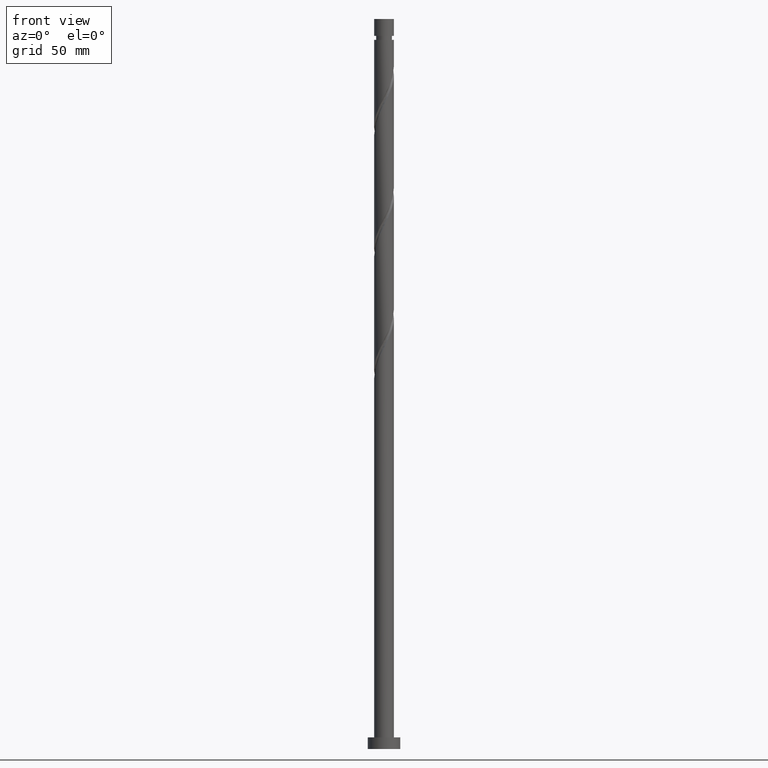
[diagram: clean part render]
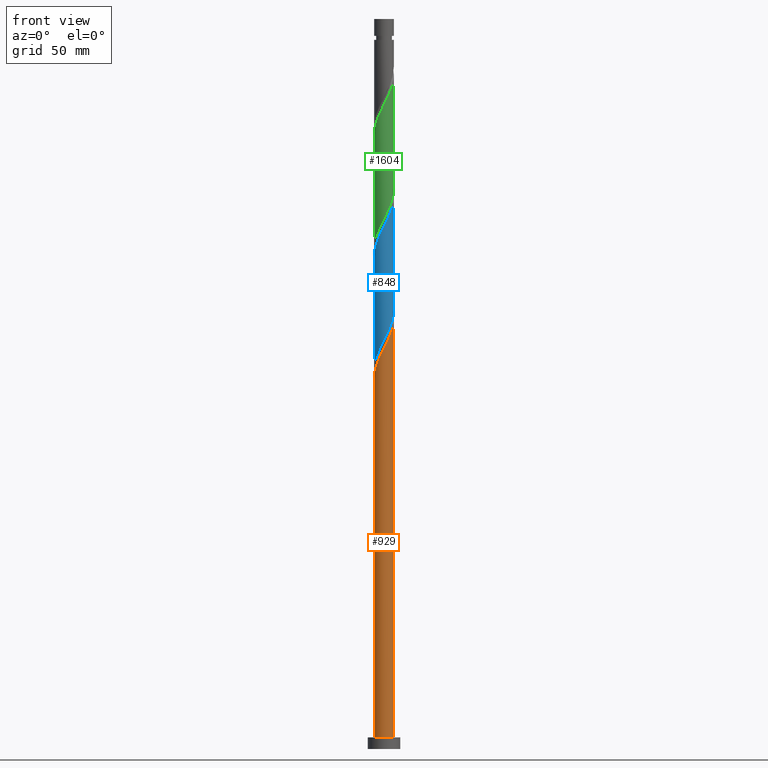
[diagram: same view with three faces highlighted in distinct colors, each labeled with its STEP entity id]
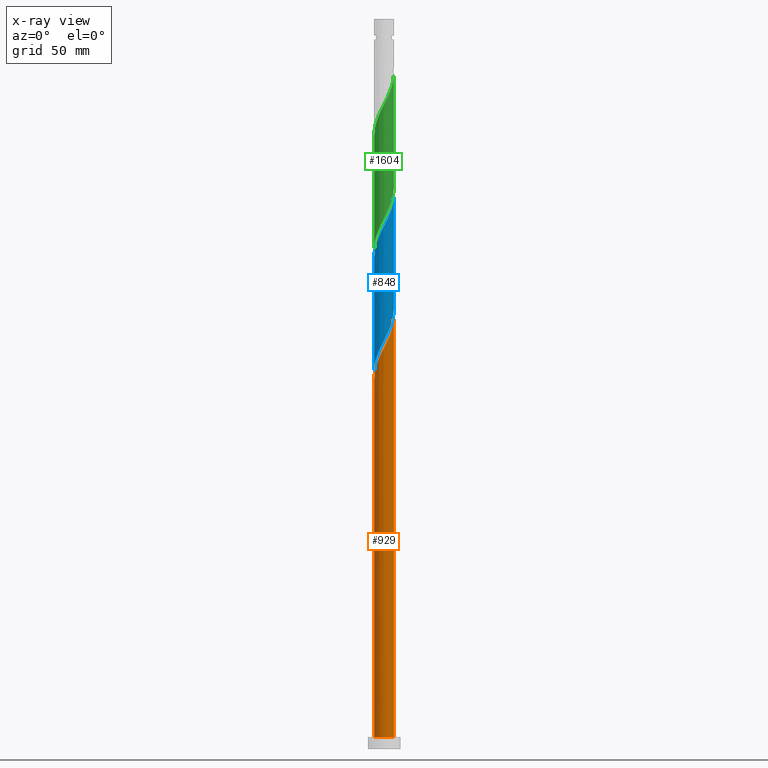
[diagram: x-ray of the same camera — body ghosted, the three highlighted faces saturated]
A machine part, front view with three faces highlighted in distinct colors.
The next image is the same camera in x-ray (body ghosted, the three faces saturated) — at least one of them is partly hidden behind the body in this view.
Their STEP definitions:

[orange] entity #929 — the highlighted cylindrical surface (edge-blend (fillet) strip) has radius 4.25 mm, axis along (-0, -0, -1).
#31 = CARTESIAN_POINT ( 'NONE',  ( -1.045140974355611041, -4.119487873962375701, 170.9937838819314493 ) ) ;
#68 = CARTESIAN_POINT ( 'NONE',  ( 1.751334560927729100, -3.872380050524500295, 176.6187838819315346 ) ) ;
#71 = DIRECTION ( 'NONE',  ( -0.000000000000000000, -0.000000000000000000, -1.000000000000000000 ) ) ;
#99 = DIRECTION ( 'NONE',  ( 1.000000000000000000, 0.000000000000000000, 0.000000000000000000 ) ) ;
#198 = CARTESIAN_POINT ( 'NONE',  ( -3.096113554533469259, -2.950574139356442416, 166.3062838819315061 ) ) ;
#225 = EDGE_CURVE ( 'NONE', #504, #1652, #1700, .T. ) ;
#234 = DIRECTION ( 'NONE',  ( -0.000000000000000000, -0.000000000000000000, -1.000000000000000000 ) ) ;
#260 = CARTESIAN_POINT ( 'NONE',  ( -4.250000000000000000, 0.000000000000000000, 5.000000000000000000 ) ) ;
#342 = CARTESIAN_POINT ( 'NONE',  ( -3.385582795664785927, -2.569110572493654487, 165.3687838819314777 ) ) ;
#351 = CARTESIAN_POINT ( 'NONE',  ( -1.935609397200013015, -3.783637966490855931, 169.1187838819315061 ) ) ;
#394 = CIRCLE ( 'NONE', #1857, 4.250000000000000000 ) ;
#492 = CARTESIAN_POINT ( 'NONE',  ( -3.675052036796103483, -2.187647005630865671, 164.4312838819314777 ) ) ;
#504 = VERTEX_POINT ( 'NONE', #746 ) ;
#519 = CARTESIAN_POINT ( 'NONE',  ( 4.237246980153090981, -0.5809861647134124674, 185.0562838819315061 ) ) ;
#553 = DIRECTION ( 'NONE',  ( -0.000000000000000000, -0.000000000000000000, -1.000000000000000000 ) ) ;
#619 = CARTESIAN_POINT ( 'NONE',  ( -4.250000000000007105, 1.061968786056577498E-14, 159.9442668040253750 ) ) ;
#649 = CARTESIAN_POINT ( 'NONE',  ( 2.187647005630865671, -3.675052036796103483, 177.5562838819315346 ) ) ;
#677 = FACE_OUTER_BOUND ( 'NONE', #1537, .T. ) ;
#746 = CARTESIAN_POINT ( 'NONE',  ( 4.250000000000006217, 6.194196011433306111E-16, 186.1942668040253750 ) ) ;
#775 = CARTESIAN_POINT ( 'NONE',  ( -3.872380050524500295, -1.751334560927729322, 163.4937838819314777 ) ) ;
#794 = CARTESIAN_POINT ( 'NONE',  ( -4.250000000000011546, -0.4271410714851449075, 160.7825378829889473 ) ) ;
#798 = ORIENTED_EDGE ( 'NONE', *, *, #1724, .T. ) ;
#805 = CARTESIAN_POINT ( 'NONE',  ( -4.165000000000006253, -0.8457393215406302511, 161.6187838819314777 ) ) ;
#822 = CYLINDRICAL_SURFACE ( 'NONE', #1917, 4.250000000000000000 ) ;
#823 = EDGE_CURVE ( 'NONE', #1587, #1652, #394, .T. ) ;
#829 = CARTESIAN_POINT ( 'NONE',  ( 4.248769457950102968, -0.1022648189283730663, 185.9937838819314777 ) ) ;
#842 = CARTESIAN_POINT ( 'NONE',  ( 0.000000000000000000, 0.000000000000000000, 315.0000000000000000 ) ) ;
#909 = CARTESIAN_POINT ( 'NONE',  ( -2.361923010402215528, -3.565547165210048774, 168.1812838819314777 ) ) ;
#926 = CARTESIAN_POINT ( 'NONE',  ( -4.069708064252899327, -1.315022116224593196, 162.5562838819315346 ) ) ;
#929 = ADVANCED_FACE ( 'NONE', ( #677 ), #822, .T. ) ;
#937 = CARTESIAN_POINT ( 'NONE',  ( 0.8457393215406298070, -4.165000000000006253, 174.7437838819315346 ) ) ;
#960 = CARTESIAN_POINT ( 'NONE',  ( 0.000000000000000000, 0.000000000000000000, 5.000000000000000000 ) ) ;
#968 = CARTESIAN_POINT ( 'NONE',  ( -4.250000000000000000, 0.000000000000000000, 315.0000000000000000 ) ) ;
#977 = CARTESIAN_POINT ( 'NONE',  ( 4.119487873962375701, -1.045140974355611041, 184.1187838819314777 ) ) ;
#990 = CARTESIAN_POINT ( 'NONE',  ( 4.250000000000006217, -0.05113981295716485409, 186.0939041158002851 ) ) ;
#993 = DIRECTION ( 'NONE',  ( -1.000000000000000000, 0.000000000000000000, 0.000000000000000000 ) ) ;
#1000 = CARTESIAN_POINT ( 'NONE',  ( 4.250000000000006217, 6.194196011433306111E-16, 186.1942668040253750 ) ) ;
#1062 = CARTESIAN_POINT ( 'NONE',  ( 1.315022116224592752, -4.069708064252899327, 175.6812838819315061 ) ) ;
#1073 = CARTESIAN_POINT ( 'NONE',  ( -1.509295783997810725, -4.001728767771663087, 170.0562838819315061 ) ) ;
#1085 = VERTEX_POINT ( 'NONE', #1332 ) ;
#1143 = CARTESIAN_POINT ( 'NONE',  ( 3.565547165210048774, -2.361923010402216416, 181.3062838819314493 ) ) ;
#1183 =( BOUNDED_CURVE ( )  B_SPLINE_CURVE ( 2, ( #619, #794, #805, #926, #775, #492, #342, #198, #1804, #909, #351, #1073, #31, #1386, #1813, #1678, #937, #1062, #68, #649, #1669, #1243, #1842, #1143, #1416, #1252, #977, #519, #829, #990, #1000 ),
 .UNSPECIFIED., .F., .T. ) 
 B_SPLINE_CURVE_WITH_KNOTS ( ( 3, 2, 2, 2, 2, 2, 2, 2, 2, 2, 2, 2, 2, 2, 2, 3 ),
 ( 0.05453034012992166030, 0.06250000000000000000, 0.07142857142857139685, 0.08035714285714290472, 0.08928571428571430157, 0.09821428571428569843, 0.1071428571428570953, 0.1160714285714286031, 0.1250000000000000000, 0.1339285714285713969, 0.1428571428571429047, 0.1517857142857143016, 0.1607142857142856984, 0.1696428571428570953, 0.1785714285714286031, 0.1795303401299219725 ),
 .UNSPECIFIED. ) 
 CURVE ( )  GEOMETRIC_REPRESENTATION_ITEM ( )  RATIONAL_B_SPLINE_CURVE ( ( 0.9079949616362110731, 0.9039886423360734558, 0.9090909090909405910, 0.9033747362666154634, 0.9090909090909405910, 0.9033747362666154634, 0.9090909090909405910, 0.9033747362666154634, 0.9090909090909405910, 0.9033747362666154634, 0.9090909090909405910, 0.9033747362666154634, 0.9090909090909405910, 0.9033747362666154634, 0.9090909090909405910, 0.9033747362666154634, 0.9090909090909405910, 0.9033747362666154634, 0.9090909090909405910, 0.9033747362666154634, 0.9090909090909405910, 0.9033747362666154634, 0.9090909090909405910, 0.9033747362666154634, 0.9090909090909405910, 0.9033747362666154634, 0.9090909090909405910, 0.9033747362666154634, 0.9090909090909405910, 0.9084770030214824876, 0.9079949616362108511 ) ) 
 REPRESENTATION_ITEM ( '' )  );
#1243 = CARTESIAN_POINT ( 'NONE',  ( 2.950574139356442416, -3.096113554533469259, 179.4312838819315630 ) ) ;
#1252 = CARTESIAN_POINT ( 'NONE',  ( 4.001728767771663087, -1.509295783997810725, 183.1812838819315346 ) ) ;
#1290 = CARTESIAN_POINT ( 'NONE',  ( 4.250000000000000000, 5.204748896376250699E-16, 5.000000000000000000 ) ) ;
#1301 = ORIENTED_EDGE ( 'NONE', *, *, #225, .F. ) ;
#1332 = CARTESIAN_POINT ( 'NONE',  ( -4.250000000000007105, 1.061968786056577498E-14, 159.9442668040253750 ) ) ;
#1364 = CARTESIAN_POINT ( 'NONE',  ( 4.250000000000000000, 5.204748896376250699E-16, 315.0000000000000000 ) ) ;
#1386 = CARTESIAN_POINT ( 'NONE',  ( -0.5809861647134121343, -4.237246980153090981, 171.9312838819314777 ) ) ;
#1416 = CARTESIAN_POINT ( 'NONE',  ( 3.783637966490855931, -1.935609397200013237, 182.2437838819314777 ) ) ;
#1457 = EDGE_CURVE ( 'NONE', #1085, #504, #1183, .T. ) ;
#1475 = VECTOR ( 'NONE', #234, 1000.000000000000000 ) ;
#1537 = EDGE_LOOP ( 'NONE', ( #1301, #1759, #798, #1753 ) ) ;
#1554 = LINE ( 'NONE', #968, #1475 ) ;
#1556 = DIRECTION ( 'NONE',  ( 0.000000000000000000, 0.000000000000000000, 1.000000000000000000 ) ) ;
#1587 = VERTEX_POINT ( 'NONE', #260 ) ;
#1601 = VECTOR ( 'NONE', #71, 1000.000000000000000 ) ;
#1652 = VERTEX_POINT ( 'NONE', #1290 ) ;
#1669 = CARTESIAN_POINT ( 'NONE',  ( 2.569110572493654487, -3.385582795664785927, 178.4937838819314493 ) ) ;
#1678 = CARTESIAN_POINT ( 'NONE',  ( 0.3764565268566665845, -4.260291935747114955, 173.8062838819315061 ) ) ;
#1700 = LINE ( 'NONE', #1364, #1601 ) ;
#1724 = EDGE_CURVE ( 'NONE', #1085, #1587, #1554, .T. ) ;
#1753 = ORIENTED_EDGE ( 'NONE', *, *, #823, .T. ) ;
#1759 = ORIENTED_EDGE ( 'NONE', *, *, #1457, .F. ) ;
#1804 = CARTESIAN_POINT ( 'NONE',  ( -2.729018282467842393, -3.258060652283245151, 167.2437838819315061 ) ) ;
#1813 = CARTESIAN_POINT ( 'NONE',  ( -0.1022648189283726916, -4.248769457950102968, 172.8687838819315061 ) ) ;
#1842 = CARTESIAN_POINT ( 'NONE',  ( 3.258060652283245151, -2.729018282467842393, 180.3687838819315061 ) ) ;
#1857 = AXIS2_PLACEMENT_3D ( 'NONE', #960, #1556, #99 ) ;
#1917 = AXIS2_PLACEMENT_3D ( 'NONE', #842, #553, #993 ) ;

[blue] entity #848 — the highlighted cylindrical surface (edge-blend (fillet) strip) has radius 4.25 mm, axis along (-0, -0, -1).
#22 = CARTESIAN_POINT ( 'NONE',  ( 4.119487873962375701, -1.045140974355611041, 236.6187838819314493 ) ) ;
#45 = EDGE_CURVE ( 'NONE', #1247, #365, #971, .T. ) ;
#62 = ORIENTED_EDGE ( 'NONE', *, *, #1747, .T. ) ;
#96 = CARTESIAN_POINT ( 'NONE',  ( -1.315022116224592308, -4.069708064252891333, 173.8062838819315630 ) ) ;
#125 = CARTESIAN_POINT ( 'NONE',  ( 2.950574139356442416, -3.096113554533469259, 231.9312838819314777 ) ) ;
#146 = CARTESIAN_POINT ( 'NONE',  ( 4.001728767771663087, -1.509295783997810725, 235.6812838819314777 ) ) ;
#256 = CARTESIAN_POINT ( 'NONE',  ( -4.250000000000007105, -1.308244049161757699E-14, 212.4442668040255171 ) ) ;
#264 = CARTESIAN_POINT ( 'NONE',  ( 4.069708064252891333, -1.315022116224592530, 186.9312838819314493 ) ) ;
#271 = CARTESIAN_POINT ( 'NONE',  ( 1.751334560927729100, -3.872380050524500295, 229.1187838819315061 ) ) ;
#287 = CARTESIAN_POINT ( 'NONE',  ( 4.237246980153090981, -0.5809861647134124674, 237.5562838819315630 ) ) ;
#298 = ORIENTED_EDGE ( 'NONE', *, *, #1007, .F. ) ;
#307 = CARTESIAN_POINT ( 'NONE',  ( -4.237246980153082099, -0.5809861647134091367, 164.4312838819314777 ) ) ;
#324 = VERTEX_POINT ( 'NONE', #256 ) ;
#362 = VECTOR ( 'NONE', #403, 1000.000000000000000 ) ;
#365 = VERTEX_POINT ( 'NONE', #983 ) ;
#374 = CARTESIAN_POINT ( 'NONE',  ( 4.250000000000000000, 5.204748896376250699E-16, 315.0000000000000000 ) ) ;
#383 = DIRECTION ( 'NONE',  ( -0.000000000000000000, -0.000000000000000000, -1.000000000000000000 ) ) ;
#403 = DIRECTION ( 'NONE',  ( -0.000000000000000000, -0.000000000000000000, -1.000000000000000000 ) ) ;
#420 = CARTESIAN_POINT ( 'NONE',  ( 3.096113554533461265, -2.950574139356437531, 183.1812838819315061 ) ) ;
#530 = DIRECTION ( 'NONE',  ( -0.000000000000000000, -0.000000000000000000, -1.000000000000000000 ) ) ;
#539 = CARTESIAN_POINT ( 'NONE',  ( -1.751334560927727324, -3.872380050524492301, 172.8687838819315346 ) ) ;
#544 = EDGE_LOOP ( 'NONE', ( #560, #298, #62, #1353 ) ) ;
#560 = ORIENTED_EDGE ( 'NONE', *, *, #728, .F. ) ;
#561 = CARTESIAN_POINT ( 'NONE',  ( -2.361923010402215528, -3.565547165210048774, 220.6812838819315061 ) ) ;
#568 = CARTESIAN_POINT ( 'NONE',  ( -3.783637966490850157, -1.935609397200007686, 167.2437838819315346 ) ) ;
#590 = CARTESIAN_POINT ( 'NONE',  ( 2.569110572493654487, -3.385582795664785927, 230.9937838819314777 ) ) ;
#608 = VECTOR ( 'NONE', #530, 1000.000000000000000 ) ;
#610 = CARTESIAN_POINT ( 'NONE',  ( 4.249999999999999112, -3.015006251348286687E-15, 189.5433009598375520 ) ) ;
#621 = LINE ( 'NONE', #374, #362 ) ;
#686 = CARTESIAN_POINT ( 'NONE',  ( 0.000000000000000000, 0.000000000000000000, 315.0000000000000000 ) ) ;
#708 = CARTESIAN_POINT ( 'NONE',  ( 2.729018282467836176, -3.258060652283240710, 182.2437838819315061 ) ) ;
#723 = CARTESIAN_POINT ( 'NONE',  ( 3.783637966490855931, -1.935609397200013237, 234.7437838819315061 ) ) ;
#728 = EDGE_CURVE ( 'NONE', #930, #1247, #621, .T. ) ;
#732 = CARTESIAN_POINT ( 'NONE',  ( -2.950574139356437531, -3.096113554533461265, 170.0562838819315346 ) ) ;
#735 = CARTESIAN_POINT ( 'NONE',  ( 4.250000000000006217, 6.194196011433306111E-16, 238.6942668040254034 ) ) ;
#750 = CARTESIAN_POINT ( 'NONE',  ( -2.569110572493650047, -3.385582795664778821, 170.9937838819314777 ) ) ;
#819 = LINE ( 'NONE', #1871, #608 ) ;
#831 = CARTESIAN_POINT ( 'NONE',  ( -3.385582795664785927, -2.569110572493654487, 217.8687838819314209 ) ) ;
#832 = CARTESIAN_POINT ( 'NONE',  ( 1.509295783997805840, -4.001728767771656869, 179.4312838819315061 ) ) ;
#843 = CARTESIAN_POINT ( 'NONE',  ( 0.5809861647134089147, -4.237246980153082099, 177.5562838819315346 ) ) ;
#848 = ADVANCED_FACE ( 'NONE', ( #1864 ), #1406, .T. ) ;
#855 = CARTESIAN_POINT ( 'NONE',  ( 3.675052036796095045, -2.187647005630862562, 185.0562838819315346 ) ) ;
#862 = CARTESIAN_POINT ( 'NONE',  ( -1.509295783997810725, -4.001728767771663087, 222.5562838819314777 ) ) ;
#871 = CARTESIAN_POINT ( 'NONE',  ( 3.258060652283245151, -2.729018282467842393, 232.8687838819315346 ) ) ;
#879 = CARTESIAN_POINT ( 'NONE',  ( -1.045140974355611041, -4.119487873962375701, 223.4937838819315061 ) ) ;
#930 = VERTEX_POINT ( 'NONE', #1727 ) ;
#945 = CARTESIAN_POINT ( 'NONE',  ( -4.249999999999999112, -9.365922884757672994E-15, 163.2933009598375520 ) ) ;
#971 =( BOUNDED_CURVE ( )  B_SPLINE_CURVE ( 2, ( #1004, #982, #1146, #264, #1576, #855, #1305, #420, #708, #1450, #1015, #832, #1282, #843, #1609, #1740, #1415, #96, #539, #989, #750, #732, #1634, #1483, #568, #1171, #1789, #307, #1069, #1684, #945 ),
 .UNSPECIFIED., .F., .T. ) 
 B_SPLINE_CURVE_WITH_KNOTS ( ( 3, 2, 2, 2, 2, 2, 2, 2, 2, 2, 2, 2, 2, 2, 2, 3 ),
 ( 0.8045303401299223056, 0.8125000000000000000, 0.8214285714285713969, 0.8303571428571429047, 0.8392857142857143016, 0.8482142857142856984, 0.8571428571428570953, 0.8660714285714286031, 0.8750000000000000000, 0.8839285714285713969, 0.8928571428571429047, 0.9017857142857143016, 0.9107142857142856984, 0.9196428571428570953, 0.9285714285714286031, 0.9295303401299221946 ),
 .UNSPECIFIED. ) 
 CURVE ( )  GEOMETRIC_REPRESENTATION_ITEM ( )  RATIONAL_B_SPLINE_CURVE ( ( 0.9079949616362023024, 0.9039886423360659062, 0.9090909090909324863, 0.9033747362666074698, 0.9090909090909324863, 0.9033747362666074698, 0.9090909090909324863, 0.9033747362666074698, 0.9090909090909324863, 0.9033747362666074698, 0.9090909090909324863, 0.9033747362666074698, 0.9090909090909324863, 0.9033747362666074698, 0.9090909090909324863, 0.9033747362666074698, 0.9090909090909324863, 0.9033747362666074698, 0.9090909090909324863, 0.9033747362666074698, 0.9090909090909324863, 0.9033747362666074698, 0.9090909090909324863, 0.9033747362666074698, 0.9090909090909324863, 0.9033747362666074698, 0.9090909090909324863, 0.9033747362666074698, 0.9090909090909324863, 0.9084770030214741610, 0.9079949616362024134 ) ) 
 REPRESENTATION_ITEM ( '' )  );
#982 = CARTESIAN_POINT ( 'NONE',  ( 4.249999999999995559, -0.4271410714851800461, 188.7050298808739512 ) ) ;
#983 = CARTESIAN_POINT ( 'NONE',  ( -4.249999999999999112, -9.365922884757672994E-15, 163.2933009598375520 ) ) ;
#989 = CARTESIAN_POINT ( 'NONE',  ( -2.187647005630862118, -3.675052036796095045, 171.9312838819314493 ) ) ;
#1002 = CARTESIAN_POINT ( 'NONE',  ( -3.096113554533469259, -2.950574139356442416, 218.8062838819314493 ) ) ;
#1004 = CARTESIAN_POINT ( 'NONE',  ( 4.249999999999999112, -3.015006251348286687E-15, 189.5433009598375804 ) ) ;
#1007 = EDGE_CURVE ( 'NONE', #324, #930, #1105, .T. ) ;
#1015 = CARTESIAN_POINT ( 'NONE',  ( 1.935609397200007242, -3.783637966490850157, 180.3687838819314777 ) ) ;
#1069 = CARTESIAN_POINT ( 'NONE',  ( -4.248769457950094974, -0.1022648189283709985, 163.4937838819315346 ) ) ;
#1105 =( BOUNDED_CURVE ( )  B_SPLINE_CURVE ( 2, ( #1902, #1125, #1894, #1574, #1145, #1745, #831, #1002, #1598, #561, #1154, #862, #879, #1764, #1473, #1458, #1496, #1773, #271, #1911, #590, #125, #871, #1185, #723, #146, #22, #287, #1341, #1320, #735 ),
 .UNSPECIFIED., .F., .T. ) 
 B_SPLINE_CURVE_WITH_KNOTS ( ( 3, 2, 2, 2, 2, 2, 2, 2, 2, 2, 2, 2, 2, 2, 2, 3 ),
 ( 0.3045303401299225277, 0.3125000000000000000, 0.3214285714285713969, 0.3303571428571429047, 0.3392857142857143016, 0.3482142857142856984, 0.3571428571428570953, 0.3660714285714286031, 0.3750000000000000000, 0.3839285714285713969, 0.3928571428571429047, 0.4017857142857143016, 0.4107142857142856984, 0.4196428571428570953, 0.4285714285714286031, 0.4295303401299218615 ),
 .UNSPECIFIED. ) 
 CURVE ( )  GEOMETRIC_REPRESENTATION_ITEM ( )  RATIONAL_B_SPLINE_CURVE ( ( 0.9079949616362102960, 0.9039886423360741219, 0.9090909090909405910, 0.9033747362666154634, 0.9090909090909405910, 0.9033747362666154634, 0.9090909090909405910, 0.9033747362666154634, 0.9090909090909405910, 0.9033747362666154634, 0.9090909090909405910, 0.9033747362666154634, 0.9090909090909405910, 0.9033747362666154634, 0.9090909090909405910, 0.9033747362666154634, 0.9090909090909405910, 0.9033747362666154634, 0.9090909090909405910, 0.9033747362666154634, 0.9090909090909405910, 0.9033747362666154634, 0.9090909090909405910, 0.9033747362666154634, 0.9090909090909405910, 0.9033747362666154634, 0.9090909090909405910, 0.9033747362666154634, 0.9090909090909405910, 0.9084770030214824876, 0.9079949616362108511 ) ) 
 REPRESENTATION_ITEM ( '' )  );
#1125 = CARTESIAN_POINT ( 'NONE',  ( -4.250000000000001776, -0.4271410714851907042, 213.2825378829890610 ) ) ;
#1145 = CARTESIAN_POINT ( 'NONE',  ( -3.872380050524500295, -1.751334560927729322, 215.9937838819314777 ) ) ;
#1146 = CARTESIAN_POINT ( 'NONE',  ( 4.164999999999997371, -0.8457393215406302511, 187.8687838819315061 ) ) ;
#1154 = CARTESIAN_POINT ( 'NONE',  ( -1.935609397200013015, -3.783637966490855931, 221.6187838819314493 ) ) ;
#1163 = AXIS2_PLACEMENT_3D ( 'NONE', #686, #383, #1281 ) ;
#1171 = CARTESIAN_POINT ( 'NONE',  ( -4.001728767771656869, -1.509295783997805840, 166.3062838819314777 ) ) ;
#1185 = CARTESIAN_POINT ( 'NONE',  ( 3.565547165210048774, -2.361923010402216416, 233.8062838819315061 ) ) ;
#1247 = VERTEX_POINT ( 'NONE', #610 ) ;
#1281 = DIRECTION ( 'NONE',  ( -1.000000000000000000, 0.000000000000000000, 0.000000000000000000 ) ) ;
#1282 = CARTESIAN_POINT ( 'NONE',  ( 1.045140974355607710, -4.119487873962370372, 178.4937838819315061 ) ) ;
#1305 = CARTESIAN_POINT ( 'NONE',  ( 3.385582795664778821, -2.569110572493650047, 184.1187838819314777 ) ) ;
#1320 = CARTESIAN_POINT ( 'NONE',  ( 4.250000000000007105, -0.05113981295717079378, 238.5939041158002851 ) ) ;
#1341 = CARTESIAN_POINT ( 'NONE',  ( 4.248769457950102968, -0.1022648189283730663, 238.4937838819314493 ) ) ;
#1353 = ORIENTED_EDGE ( 'NONE', *, *, #45, .F. ) ;
#1406 = CYLINDRICAL_SURFACE ( 'NONE', #1163, 4.250000000000000000 ) ;
#1415 = CARTESIAN_POINT ( 'NONE',  ( -0.8457393215406299181, -4.164999999999997371, 174.7437838819314493 ) ) ;
#1450 = CARTESIAN_POINT ( 'NONE',  ( 2.361923010402209755, -3.565547165210043445, 181.3062838819314777 ) ) ;
#1458 = CARTESIAN_POINT ( 'NONE',  ( 0.3764565268566665845, -4.260291935747114955, 226.3062838819315346 ) ) ;
#1473 = CARTESIAN_POINT ( 'NONE',  ( -0.1022648189283726916, -4.248769457950102968, 225.3687838819314777 ) ) ;
#1483 = CARTESIAN_POINT ( 'NONE',  ( -3.565547165210043445, -2.361923010402209755, 168.1812838819315346 ) ) ;
#1496 = CARTESIAN_POINT ( 'NONE',  ( 0.8457393215406298070, -4.165000000000006253, 227.2437838819315061 ) ) ;
#1574 = CARTESIAN_POINT ( 'NONE',  ( -4.069708064252899327, -1.315022116224593196, 215.0562838819314777 ) ) ;
#1576 = CARTESIAN_POINT ( 'NONE',  ( 3.872380050524492301, -1.751334560927727990, 185.9937838819315346 ) ) ;
#1598 = CARTESIAN_POINT ( 'NONE',  ( -2.729018282467842393, -3.258060652283245151, 219.7437838819314493 ) ) ;
#1609 = CARTESIAN_POINT ( 'NONE',  ( 0.1022648189283707904, -4.248769457950094086, 176.6187838819314777 ) ) ;
#1634 = CARTESIAN_POINT ( 'NONE',  ( -3.258060652283240266, -2.729018282467836176, 169.1187838819314777 ) ) ;
#1684 = CARTESIAN_POINT ( 'NONE',  ( -4.250000000000000000, -0.05113981295715103875, 163.3936636480626419 ) ) ;
#1727 = CARTESIAN_POINT ( 'NONE',  ( 4.250000000000006217, 6.194196011433306111E-16, 238.6942668040254034 ) ) ;
#1740 = CARTESIAN_POINT ( 'NONE',  ( -0.3764565268566676393, -4.260291935747106074, 175.6812838819314209 ) ) ;
#1745 = CARTESIAN_POINT ( 'NONE',  ( -3.675052036796103483, -2.187647005630865671, 216.9312838819315346 ) ) ;
#1747 = EDGE_CURVE ( 'NONE', #324, #365, #819, .T. ) ;
#1764 = CARTESIAN_POINT ( 'NONE',  ( -0.5809861647134121343, -4.237246980153090981, 224.4312838819315346 ) ) ;
#1773 = CARTESIAN_POINT ( 'NONE',  ( 1.315022116224592752, -4.069708064252899327, 228.1812838819315061 ) ) ;
#1789 = CARTESIAN_POINT ( 'NONE',  ( -4.119487873962370372, -1.045140974355607932, 165.3687838819314777 ) ) ;
#1864 = FACE_OUTER_BOUND ( 'NONE', #544, .T. ) ;
#1871 = CARTESIAN_POINT ( 'NONE',  ( -4.250000000000000000, 0.000000000000000000, 315.0000000000000000 ) ) ;
#1894 = CARTESIAN_POINT ( 'NONE',  ( -4.165000000000006253, -0.8457393215406302511, 214.1187838819315061 ) ) ;
#1902 = CARTESIAN_POINT ( 'NONE',  ( -4.250000000000007105, -1.308244049161757699E-14, 212.4442668040255171 ) ) ;
#1911 = CARTESIAN_POINT ( 'NONE',  ( 2.187647005630865671, -3.675052036796103483, 230.0562838819315061 ) ) ;

[green] entity #1604 — the highlighted cylindrical surface (edge-blend (fillet) strip) has radius 4.25 mm, axis along (-0, -0, -1).
#51 = CARTESIAN_POINT ( 'NONE',  ( -0.1022648189283726916, -4.248769457950102968, 277.8687838819315061 ) ) ;
#70 = CARTESIAN_POINT ( 'NONE',  ( 4.250000000000007105, 0.000000000000000000, 291.1942668040254034 ) ) ;
#81 = CARTESIAN_POINT ( 'NONE',  ( 3.872380050524492301, -1.751334560927727990, 238.4937838819314493 ) ) ;
#90 = CARTESIAN_POINT ( 'NONE',  ( -3.258060652283240266, -2.729018282467836176, 221.6187838819314777 ) ) ;
#100 = CARTESIAN_POINT ( 'NONE',  ( 3.096113554533461265, -2.950574139356437531, 235.6812838819314777 ) ) ;
#110 = CARTESIAN_POINT ( 'NONE',  ( -3.783637966490850157, -1.935609397200007686, 219.7437838819314493 ) ) ;
#181 = CARTESIAN_POINT ( 'NONE',  ( 1.315022116224592752, -4.069708064252899327, 280.6812838819314493 ) ) ;
#211 = CARTESIAN_POINT ( 'NONE',  ( -3.675052036796103483, -2.187647005630865671, 269.4312838819315061 ) ) ;
#237 = ORIENTED_EDGE ( 'NONE', *, *, #647, .F. ) ;
#239 = AXIS2_PLACEMENT_3D ( 'NONE', #1437, #540, #1891 ) ;
#278 = EDGE_CURVE ( 'NONE', #1397, #1325, #1775, .T. ) ;
#333 = CARTESIAN_POINT ( 'NONE',  ( -2.729018282467842393, -3.258060652283245151, 272.2437838819315630 ) ) ;
#353 = CARTESIAN_POINT ( 'NONE',  ( 2.950574139356442416, -3.096113554533469259, 284.4312838819315061 ) ) ;
#359 = VERTEX_POINT ( 'NONE', #1896 ) ;
#368 = EDGE_CURVE ( 'NONE', #359, #1397, #554, .T. ) ;
#381 = CARTESIAN_POINT ( 'NONE',  ( -4.250000000000007105, -6.044938276218046483E-16, 264.9442668040254603 ) ) ;
#396 = CARTESIAN_POINT ( 'NONE',  ( 4.249999999999999112, -3.015006251348286687E-15, 242.0433009598375236 ) ) ;
#412 = CARTESIAN_POINT ( 'NONE',  ( 2.361923010402209755, -3.565547165210043445, 233.8062838819314777 ) ) ;
#422 = VECTOR ( 'NONE', #1459, 1000.000000000000000 ) ;
#431 = CARTESIAN_POINT ( 'NONE',  ( -4.069708064252899327, -1.315022116224593196, 267.5562838819315061 ) ) ;
#450 = CARTESIAN_POINT ( 'NONE',  ( -4.250000000000000000, 0.000000000000000000, 315.0000000000000000 ) ) ;
#477 = CARTESIAN_POINT ( 'NONE',  ( -3.872380050524500295, -1.751334560927729322, 268.4937838819315061 ) ) ;
#538 = EDGE_CURVE ( 'NONE', #1701, #1325, #1641, .T. ) ;
#540 = DIRECTION ( 'NONE',  ( -0.000000000000000000, -0.000000000000000000, -1.000000000000000000 ) ) ;
#554 = LINE ( 'NONE', #1147, #758 ) ;
#564 = CARTESIAN_POINT ( 'NONE',  ( -2.187647005630862118, -3.675052036796095045, 224.4312838819315346 ) ) ;
#580 = ORIENTED_EDGE ( 'NONE', *, *, #538, .T. ) ;
#632 = CARTESIAN_POINT ( 'NONE',  ( 3.783637966490855931, -1.935609397200013237, 287.2437838819314493 ) ) ;
#642 = CARTESIAN_POINT ( 'NONE',  ( -1.509295783997810725, -4.001728767771663087, 275.0562838819314493 ) ) ;
#647 = EDGE_CURVE ( 'NONE', #1701, #359, #833, .T. ) ;
#658 = CYLINDRICAL_SURFACE ( 'NONE', #239, 4.250000000000000000 ) ;
#669 = CARTESIAN_POINT ( 'NONE',  ( 3.675052036796095045, -2.187647005630862562, 237.5562838819315061 ) ) ;
#678 = CARTESIAN_POINT ( 'NONE',  ( 0.5809861647134089147, -4.237246980153082099, 230.0562838819315061 ) ) ;
#758 = VECTOR ( 'NONE', #1755, 1000.000000000000000 ) ;
#786 = CARTESIAN_POINT ( 'NONE',  ( 4.237246980153090981, -0.5809861647134124674, 290.0562838819314493 ) ) ;
#796 = CARTESIAN_POINT ( 'NONE',  ( 4.119487873962375701, -1.045140974355611041, 289.1187838819315061 ) ) ;
#824 = CARTESIAN_POINT ( 'NONE',  ( 2.729018282467836176, -3.258060652283240710, 234.7437838819315346 ) ) ;
#833 =( BOUNDED_CURVE ( )  B_SPLINE_CURVE ( 2, ( #1765, #1786, #890, #431, #477, #211, #1815, #1510, #333, #1245, #1398, #642, #1227, #1689, #51, #1835, #911, #181, #1237, #928, #1064, #353, #1536, #1388, #632, #1526, #796, #786, #921, #1518, #70 ),
 .UNSPECIFIED., .F., .T. ) 
 B_SPLINE_CURVE_WITH_KNOTS ( ( 3, 2, 2, 2, 2, 2, 2, 2, 2, 2, 2, 2, 2, 2, 2, 3 ),
 ( 0.5545303401299224166, 0.5625000000000000000, 0.5714285714285713969, 0.5803571428571427937, 0.5892857142857143016, 0.5982142857142856984, 0.6071428571428572063, 0.6160714285714286031, 0.6250000000000000000, 0.6339285714285713969, 0.6428571428571427937, 0.6517857142857143016, 0.6607142857142856984, 0.6696428571428572063, 0.6785714285714286031, 0.6795303401299219725 ),
 .UNSPECIFIED. ) 
 CURVE ( )  GEOMETRIC_REPRESENTATION_ITEM ( )  RATIONAL_B_SPLINE_CURVE ( ( 0.9079949616362104070, 0.9039886423360740109, 0.9090909090909405910, 0.9033747362666154634, 0.9090909090909405910, 0.9033747362666154634, 0.9090909090909405910, 0.9033747362666154634, 0.9090909090909405910, 0.9033747362666154634, 0.9090909090909405910, 0.9033747362666154634, 0.9090909090909405910, 0.9033747362666154634, 0.9090909090909405910, 0.9033747362666154634, 0.9090909090909405910, 0.9033747362666154634, 0.9090909090909405910, 0.9033747362666154634, 0.9090909090909405910, 0.9033747362666154634, 0.9090909090909405910, 0.9033747362666154634, 0.9090909090909405910, 0.9033747362666154634, 0.9090909090909405910, 0.9033747362666154634, 0.9090909090909405910, 0.9084770030214824876, 0.9079949616362108511 ) ) 
 REPRESENTATION_ITEM ( '' )  );
#844 = CARTESIAN_POINT ( 'NONE',  ( 4.249999999999996447, -0.4271410714851742729, 241.2050298808739797 ) ) ;
#856 = CARTESIAN_POINT ( 'NONE',  ( -2.569110572493650047, -3.385582795664778821, 223.4937838819315061 ) ) ;
#863 = CARTESIAN_POINT ( 'NONE',  ( -4.249999999999999112, -0.05113981295715697151, 215.8936636480626419 ) ) ;
#890 = CARTESIAN_POINT ( 'NONE',  ( -4.165000000000006253, -0.8457393215406302511, 266.6187838819314493 ) ) ;
#911 = CARTESIAN_POINT ( 'NONE',  ( 0.8457393215406298070, -4.165000000000006253, 279.7437838819315630 ) ) ;
#921 = CARTESIAN_POINT ( 'NONE',  ( 4.248769457950102968, -0.1022648189283730663, 290.9937838819315061 ) ) ;
#928 = CARTESIAN_POINT ( 'NONE',  ( 2.187647005630865671, -3.675052036796103483, 282.5562838819315061 ) ) ;
#994 = CARTESIAN_POINT ( 'NONE',  ( 4.069708064252891333, -1.315022116224592530, 239.4312838819315061 ) ) ;
#1005 = CARTESIAN_POINT ( 'NONE',  ( -1.751334560927727324, -3.872380050524492301, 225.3687838819314777 ) ) ;
#1034 = ORIENTED_EDGE ( 'NONE', *, *, #368, .F. ) ;
#1064 = CARTESIAN_POINT ( 'NONE',  ( 2.569110572493654487, -3.385582795664785927, 283.4937838819313924 ) ) ;
#1115 = CARTESIAN_POINT ( 'NONE',  ( -4.249999999999999112, 2.477678404573344532E-15, 215.7933009598375804 ) ) ;
#1126 = CARTESIAN_POINT ( 'NONE',  ( 1.509295783997805840, -4.001728767771656869, 231.9312838819315061 ) ) ;
#1136 = CARTESIAN_POINT ( 'NONE',  ( 4.164999999999997371, -0.8457393215406302511, 240.3687838819314777 ) ) ;
#1147 = CARTESIAN_POINT ( 'NONE',  ( 4.250000000000000000, 5.204748896376250699E-16, 315.0000000000000000 ) ) ;
#1211 = ORIENTED_EDGE ( 'NONE', *, *, #278, .F. ) ;
#1227 = CARTESIAN_POINT ( 'NONE',  ( -1.045140974355611041, -4.119487873962375701, 275.9937838819315061 ) ) ;
#1237 = CARTESIAN_POINT ( 'NONE',  ( 1.751334560927729100, -3.872380050524500295, 281.6187838819315061 ) ) ;
#1245 = CARTESIAN_POINT ( 'NONE',  ( -2.361923010402215528, -3.565547165210048774, 273.1812838819313924 ) ) ;
#1265 = CARTESIAN_POINT ( 'NONE',  ( -4.119487873962370372, -1.045140974355607932, 217.8687838819314493 ) ) ;
#1295 = CARTESIAN_POINT ( 'NONE',  ( -0.3764565268566676393, -4.260291935747106074, 228.1812838819314777 ) ) ;
#1306 = CARTESIAN_POINT ( 'NONE',  ( -0.8457393215406299181, -4.164999999999997371, 227.2437838819315346 ) ) ;
#1325 = VERTEX_POINT ( 'NONE', #1524 ) ;
#1376 = CARTESIAN_POINT ( 'NONE',  ( 4.249999999999999112, -3.015006251348286687E-15, 242.0433009598375236 ) ) ;
#1388 = CARTESIAN_POINT ( 'NONE',  ( 3.565547165210048774, -2.361923010402216416, 286.3062838819314493 ) ) ;
#1397 = VERTEX_POINT ( 'NONE', #1376 ) ;
#1398 = CARTESIAN_POINT ( 'NONE',  ( -1.935609397200013015, -3.783637966490855931, 274.1187838819314493 ) ) ;
#1419 = CARTESIAN_POINT ( 'NONE',  ( 1.935609397200007242, -3.783637966490850157, 232.8687838819314493 ) ) ;
#1428 = CARTESIAN_POINT ( 'NONE',  ( -4.001728767771656869, -1.509295783997805840, 218.8062838819314777 ) ) ;
#1437 = CARTESIAN_POINT ( 'NONE',  ( 0.000000000000000000, 0.000000000000000000, 315.0000000000000000 ) ) ;
#1459 = DIRECTION ( 'NONE',  ( -0.000000000000000000, -0.000000000000000000, -1.000000000000000000 ) ) ;
#1510 = CARTESIAN_POINT ( 'NONE',  ( -3.096113554533469259, -2.950574139356442416, 271.3062838819315630 ) ) ;
#1518 = CARTESIAN_POINT ( 'NONE',  ( 4.250000000000006217, -0.05113981295716485409, 291.0939041158002283 ) ) ;
#1524 = CARTESIAN_POINT ( 'NONE',  ( -4.249999999999999112, 2.477678404573344532E-15, 215.7933009598375804 ) ) ;
#1526 = CARTESIAN_POINT ( 'NONE',  ( 4.001728767771663087, -1.509295783997810725, 288.1812838819315630 ) ) ;
#1536 = CARTESIAN_POINT ( 'NONE',  ( 3.258060652283245151, -2.729018282467842393, 285.3687838819315630 ) ) ;
#1588 = CARTESIAN_POINT ( 'NONE',  ( -2.950574139356437531, -3.096113554533461265, 222.5562838819315061 ) ) ;
#1604 = ADVANCED_FACE ( 'NONE', ( #1879 ), #658, .T. ) ;
#1641 = LINE ( 'NONE', #450, #422 ) ;
#1689 = CARTESIAN_POINT ( 'NONE',  ( -0.5809861647134121343, -4.237246980153090981, 276.9312838819316198 ) ) ;
#1701 = VERTEX_POINT ( 'NONE', #381 ) ;
#1719 = CARTESIAN_POINT ( 'NONE',  ( -1.315022116224592308, -4.069708064252891333, 226.3062838819315061 ) ) ;
#1728 = CARTESIAN_POINT ( 'NONE',  ( -4.237246980153082099, -0.5809861647134091367, 216.9312838819314493 ) ) ;
#1737 = CARTESIAN_POINT ( 'NONE',  ( 3.385582795664778821, -2.569110572493650047, 236.6187838819314777 ) ) ;
#1746 = CARTESIAN_POINT ( 'NONE',  ( -3.565547165210043445, -2.361923010402209755, 220.6812838819314493 ) ) ;
#1755 = DIRECTION ( 'NONE',  ( -0.000000000000000000, -0.000000000000000000, -1.000000000000000000 ) ) ;
#1765 = CARTESIAN_POINT ( 'NONE',  ( -4.250000000000007105, -6.044938276218046483E-16, 264.9442668040254603 ) ) ;
#1775 =( BOUNDED_CURVE ( )  B_SPLINE_CURVE ( 2, ( #396, #844, #1136, #994, #81, #669, #1737, #100, #824, #412, #1419, #1126, #1883, #678, #1904, #1295, #1306, #1719, #1005, #564, #856, #1588, #90, #1746, #110, #1428, #1265, #1728, #1865, #863, #1115 ),
 .UNSPECIFIED., .F., .T. ) 
 B_SPLINE_CURVE_WITH_KNOTS ( ( 3, 2, 2, 2, 2, 2, 2, 2, 2, 2, 2, 2, 2, 2, 2, 3 ),
 ( 0.5545303401299221946, 0.5625000000000000000, 0.5714285714285713969, 0.5803571428571429047, 0.5892857142857143016, 0.5982142857142856984, 0.6071428571428570953, 0.6160714285714286031, 0.6250000000000000000, 0.6339285714285713969, 0.6428571428571429047, 0.6517857142857143016, 0.6607142857142856984, 0.6696428571428570953, 0.6785714285714286031, 0.6795303401299220836 ),
 .UNSPECIFIED. ) 
 CURVE ( )  GEOMETRIC_REPRESENTATION_ITEM ( )  RATIONAL_B_SPLINE_CURVE ( ( 0.9079949616362024134, 0.9039886423360657952, 0.9090909090909324863, 0.9033747362666074698, 0.9090909090909324863, 0.9033747362666074698, 0.9090909090909324863, 0.9033747362666074698, 0.9090909090909324863, 0.9033747362666074698, 0.9090909090909324863, 0.9033747362666074698, 0.9090909090909324863, 0.9033747362666074698, 0.9090909090909324863, 0.9033747362666074698, 0.9090909090909324863, 0.9033747362666074698, 0.9090909090909324863, 0.9033747362666074698, 0.9090909090909324863, 0.9033747362666074698, 0.9090909090909324863, 0.9033747362666074698, 0.9090909090909324863, 0.9033747362666074698, 0.9090909090909324863, 0.9033747362666074698, 0.9090909090909324863, 0.9084770030214742720, 0.9079949616362026354 ) ) 
 REPRESENTATION_ITEM ( '' )  );
#1786 = CARTESIAN_POINT ( 'NONE',  ( -4.250000000000002665, -0.4271410714851848756, 265.7825378829890610 ) ) ;
#1815 = CARTESIAN_POINT ( 'NONE',  ( -3.385582795664785927, -2.569110572493654487, 270.3687838819313924 ) ) ;
#1835 = CARTESIAN_POINT ( 'NONE',  ( 0.3764565268566665845, -4.260291935747114955, 278.8062838819315061 ) ) ;
#1837 = EDGE_LOOP ( 'NONE', ( #1034, #237, #580, #1211 ) ) ;
#1865 = CARTESIAN_POINT ( 'NONE',  ( -4.248769457950094974, -0.1022648189283709985, 215.9937838819315061 ) ) ;
#1879 = FACE_OUTER_BOUND ( 'NONE', #1837, .T. ) ;
#1883 = CARTESIAN_POINT ( 'NONE',  ( 1.045140974355607710, -4.119487873962370372, 230.9937838819314777 ) ) ;
#1891 = DIRECTION ( 'NONE',  ( -1.000000000000000000, 0.000000000000000000, 0.000000000000000000 ) ) ;
#1896 = CARTESIAN_POINT ( 'NONE',  ( 4.250000000000007105, 0.000000000000000000, 291.1942668040254034 ) ) ;
#1904 = CARTESIAN_POINT ( 'NONE',  ( 0.1022648189283707904, -4.248769457950094086, 229.1187838819315061 ) ) ;